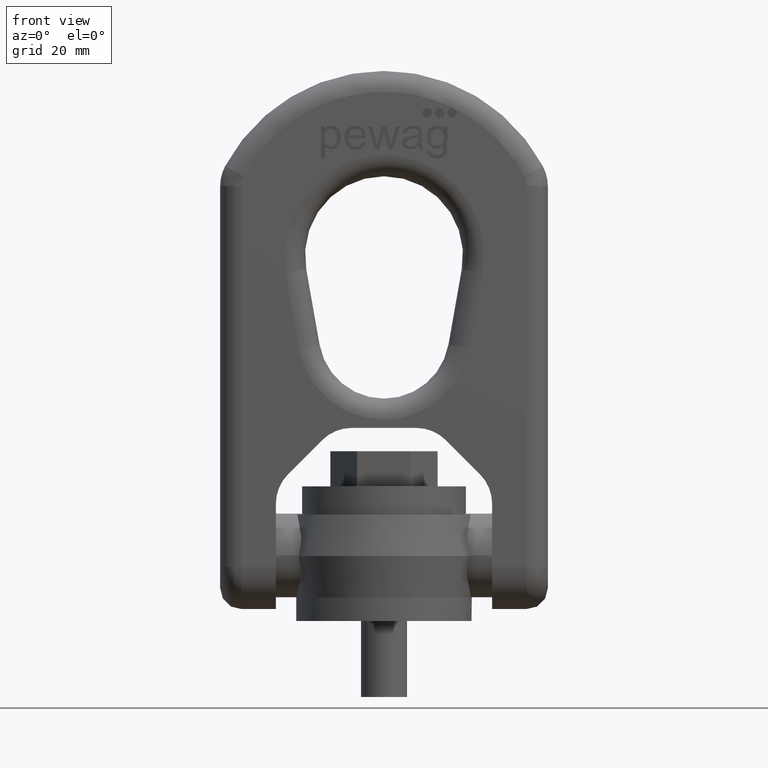
[diagram: clean part render]
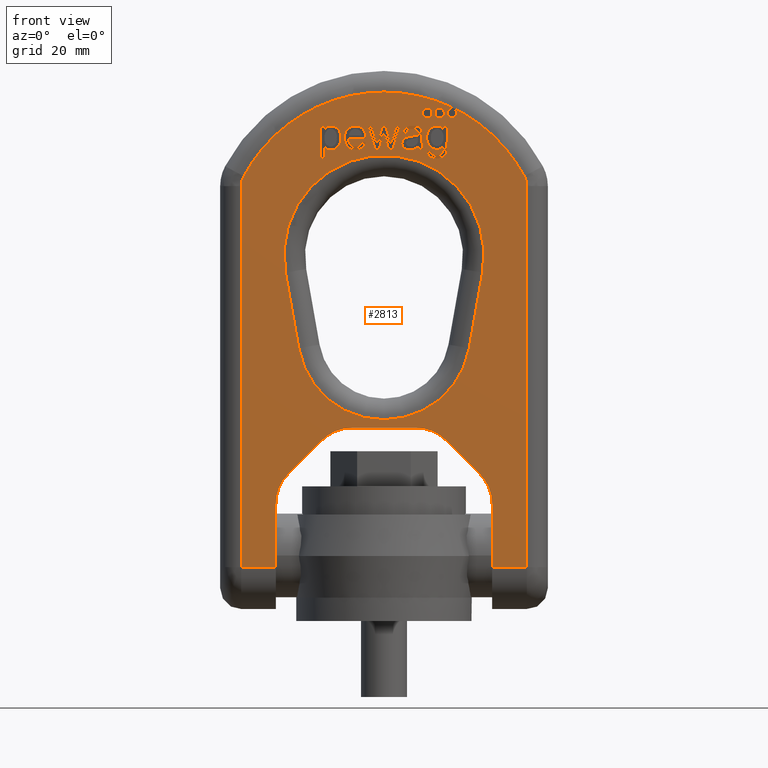
[diagram: same view with one face highlighted and labeled with its STEP entity id]
A machine part, front view. The second image highlights one B-rep face of the part: STEP entity #2813.
In plain terms, the highlighted planar face has unit normal (0, -1, 0).
Its self-contained STEP definition (entity closure, byte-faithful):
#303=B_SPLINE_CURVE_WITH_KNOTS('',3,(#7105,#7106,#7107,#7108),
 .UNSPECIFIED.,.F.,.F.,(4,4),(0.,1.),.UNSPECIFIED.);
#304=B_SPLINE_CURVE_WITH_KNOTS('',3,(#7110,#7111,#7112,#7113,#7114,#7115,
#7116,#7117,#7118,#7119),.UNSPECIFIED.,.F.,.F.,(4,2,2,2,4),(0.,0.228358481914091,
0.466434346037291,0.703045305681468,1.),.UNSPECIFIED.);
#305=B_SPLINE_CURVE_WITH_KNOTS('',3,(#7121,#7122,#7123,#7124),
 .UNSPECIFIED.,.F.,.F.,(4,4),(0.,1.),.UNSPECIFIED.);
#306=B_SPLINE_CURVE_WITH_KNOTS('',3,(#7128,#7129,#7130,#7131),
 .UNSPECIFIED.,.F.,.F.,(4,4),(0.,1.),.UNSPECIFIED.);
#307=B_SPLINE_CURVE_WITH_KNOTS('',3,(#7133,#7134,#7135,#7136),
 .UNSPECIFIED.,.F.,.F.,(4,4),(0.,1.),.UNSPECIFIED.);
#308=B_SPLINE_CURVE_WITH_KNOTS('',3,(#7138,#7139,#7140,#7141),
 .UNSPECIFIED.,.F.,.F.,(4,4),(0.,1.),.UNSPECIFIED.);
#309=B_SPLINE_CURVE_WITH_KNOTS('',3,(#7143,#7144,#7145,#7146),
 .UNSPECIFIED.,.F.,.F.,(4,4),(0.,1.),.UNSPECIFIED.);
#310=B_SPLINE_CURVE_WITH_KNOTS('',3,(#7148,#7149,#7150,#7151,#7152,#7153),
 .UNSPECIFIED.,.F.,.F.,(4,2,4),(0.,0.55978260869565,1.),.UNSPECIFIED.);
#311=B_SPLINE_CURVE_WITH_KNOTS('',3,(#7155,#7156,#7157,#7158),
 .UNSPECIFIED.,.F.,.F.,(4,4),(0.,1.),.UNSPECIFIED.);
#312=B_SPLINE_CURVE_WITH_KNOTS('',3,(#7162,#7163,#7164,#7165),
 .UNSPECIFIED.,.F.,.F.,(4,4),(0.,1.),.UNSPECIFIED.);
#313=B_SPLINE_CURVE_WITH_KNOTS('',3,(#7167,#7168,#7169,#7170,#7171,#7172),
 .UNSPECIFIED.,.F.,.F.,(4,2,4),(0.,0.476123595505615,1.),.UNSPECIFIED.);
#314=B_SPLINE_CURVE_WITH_KNOTS('',3,(#7174,#7175,#7176,#7177),
 .UNSPECIFIED.,.F.,.F.,(4,4),(0.,1.),.UNSPECIFIED.);
#315=B_SPLINE_CURVE_WITH_KNOTS('',3,(#7179,#7180,#7181,#7182,#7183,#7184,
#7185,#7186),.UNSPECIFIED.,.F.,.F.,(4,2,2,4),(0.,0.472355769230762,0.730769230769214,
1.),.UNSPECIFIED.);
#316=B_SPLINE_CURVE_WITH_KNOTS('',3,(#7188,#7189,#7190,#7191),
 .UNSPECIFIED.,.F.,.F.,(4,4),(0.,1.),.UNSPECIFIED.);
#317=B_SPLINE_CURVE_WITH_KNOTS('',3,(#7199,#7200,#7201,#7202),
 .UNSPECIFIED.,.F.,.F.,(4,4),(0.,1.),.UNSPECIFIED.);
#318=B_SPLINE_CURVE_WITH_KNOTS('',3,(#7204,#7205,#7206,#7207),
 .UNSPECIFIED.,.F.,.F.,(4,4),(0.,1.),.UNSPECIFIED.);
#319=B_SPLINE_CURVE_WITH_KNOTS('',3,(#7229,#7230,#7231,#7232),
 .UNSPECIFIED.,.F.,.F.,(4,4),(0.,1.),.UNSPECIFIED.);
#320=B_SPLINE_CURVE_WITH_KNOTS('',3,(#7242,#7243,#7244,#7245),
 .UNSPECIFIED.,.F.,.F.,(4,4),(0.,1.),.UNSPECIFIED.);
#321=B_SPLINE_CURVE_WITH_KNOTS('',3,(#7247,#7248,#7249,#7250,#7251,#7252),
 .UNSPECIFIED.,.F.,.F.,(4,2,4),(0.,0.434679334916866,1.),.UNSPECIFIED.);
#322=B_SPLINE_CURVE_WITH_KNOTS('',3,(#7254,#7255,#7256,#7257),
 .UNSPECIFIED.,.F.,.F.,(4,4),(0.,1.),.UNSPECIFIED.);
#323=B_SPLINE_CURVE_WITH_KNOTS('',3,(#7261,#7262,#7263,#7264),
 .UNSPECIFIED.,.F.,.F.,(4,4),(0.,1.),.UNSPECIFIED.);
#324=B_SPLINE_CURVE_WITH_KNOTS('',3,(#7266,#7267,#7268,#7269,#7270,#7271),
 .UNSPECIFIED.,.F.,.F.,(4,2,4),(0.,0.570469798657718,1.),.UNSPECIFIED.);
#325=B_SPLINE_CURVE_WITH_KNOTS('',3,(#7273,#7274,#7275,#7276,#7277,#7278,
#7279,#7280,#7281,#7282,#7283,#7284),.UNSPECIFIED.,.F.,.F.,(4,2,2,2,2,4),
(0.,0.122570626594234,0.245141253188468,0.495637533752412,0.746133814316355,
1.),.UNSPECIFIED.);
#326=B_SPLINE_CURVE_WITH_KNOTS('',3,(#7286,#7287,#7288,#7289),
 .UNSPECIFIED.,.F.,.F.,(4,4),(0.,1.),.UNSPECIFIED.);
#327=B_SPLINE_CURVE_WITH_KNOTS('',3,(#7290,#7291,#7292,#7293),
 .UNSPECIFIED.,.F.,.F.,(4,4),(0.,1.),.UNSPECIFIED.);
#328=B_SPLINE_CURVE_WITH_KNOTS('',3,(#7296,#7297,#7298,#7299),
 .UNSPECIFIED.,.F.,.F.,(4,4),(0.,1.),.UNSPECIFIED.);
#329=B_SPLINE_CURVE_WITH_KNOTS('',3,(#7301,#7302,#7303,#7304,#7305,#7306,
#7307,#7308,#7309,#7310),.UNSPECIFIED.,.F.,.F.,(4,2,2,2,4),(0.,0.230139294836345,
0.492074150143503,0.754009005450665,1.),.UNSPECIFIED.);
#330=B_SPLINE_CURVE_WITH_KNOTS('',3,(#7327,#7328,#7329,#7330,#7331,#7332),
 .UNSPECIFIED.,.F.,.F.,(4,2,4),(0.,0.329498767460968,1.),.UNSPECIFIED.);
#331=B_SPLINE_CURVE_WITH_KNOTS('',3,(#7335,#7336,#7337,#7338,#7339,#7340,
#7341,#7342),.UNSPECIFIED.,.F.,.F.,(4,2,2,4),(0.,0.361028692437342,0.681441656975486,
1.),.UNSPECIFIED.);
#332=B_SPLINE_CURVE_WITH_KNOTS('',3,(#7344,#7345,#7346,#7347),
 .UNSPECIFIED.,.F.,.F.,(4,4),(0.,1.),.UNSPECIFIED.);
#333=B_SPLINE_CURVE_WITH_KNOTS('',3,(#7351,#7352,#7353,#7354),
 .UNSPECIFIED.,.F.,.F.,(4,4),(0.,1.),.UNSPECIFIED.);
#334=B_SPLINE_CURVE_WITH_KNOTS('',3,(#7356,#7357,#7358,#7359,#7360,#7361),
 .UNSPECIFIED.,.F.,.F.,(4,2,4),(0.,0.555803571428574,1.),.UNSPECIFIED.);
#335=B_SPLINE_CURVE_WITH_KNOTS('',3,(#7363,#7364,#7365,#7366,#7367,#7368),
 .UNSPECIFIED.,.F.,.F.,(4,2,4),(0.,0.500000000000002,1.),.UNSPECIFIED.);
#336=B_SPLINE_CURVE_WITH_KNOTS('',3,(#7370,#7371,#7372,#7373,#7374,#7375,
#7376,#7377,#7378,#7379,#7380,#7381,#7382,#7383),.UNSPECIFIED.,.F.,.F.,
(4,2,2,2,2,2,4),(0.,0.152201346045992,0.327187324733599,0.502173303421206,
0.676318003365121,0.850462703309033,1.),.UNSPECIFIED.);
#1765=LINE('',#7036,#2073);
#1768=LINE('',#7045,#2076);
#1770=LINE('',#7054,#2078);
#1773=LINE('',#7067,#2081);
#1774=LINE('',#7069,#2082);
#1775=LINE('',#7074,#2083);
#1776=LINE('',#7077,#2084);
#1777=LINE('',#7085,#2085);
#1778=LINE('',#7086,#2086);
#1779=LINE('',#7089,#2087);
#1780=LINE('',#7093,#2088);
#1781=LINE('',#7097,#2089);
#1782=LINE('',#7101,#2090);
#1783=LINE('',#7102,#2091);
#1784=LINE('',#7126,#2092);
#1785=LINE('',#7160,#2093);
#1786=LINE('',#7192,#2094);
#1787=LINE('',#7195,#2095);
#1788=LINE('',#7197,#2096);
#1789=LINE('',#7209,#2097);
#1790=LINE('',#7211,#2098);
#1791=LINE('',#7213,#2099);
#1792=LINE('',#7215,#2100);
#1793=LINE('',#7217,#2101);
#1794=LINE('',#7219,#2102);
#1795=LINE('',#7221,#2103);
#1796=LINE('',#7223,#2104);
#1797=LINE('',#7225,#2105);
#1798=LINE('',#7227,#2106);
#1799=LINE('',#7234,#2107);
#1800=LINE('',#7236,#2108);
#1801=LINE('',#7238,#2109);
#1802=LINE('',#7239,#2110);
#1803=LINE('',#7259,#2111);
#1804=LINE('',#7312,#2112);
#1805=LINE('',#7314,#2113);
#1806=LINE('',#7316,#2114);
#1807=LINE('',#7318,#2115);
#1808=LINE('',#7320,#2116);
#1809=LINE('',#7322,#2117);
#1810=LINE('',#7324,#2118);
#1811=LINE('',#7349,#2119);
#1812=LINE('',#7385,#2120);
#1813=LINE('',#7387,#2121);
#1814=LINE('',#7389,#2122);
#2073=VECTOR('',#6164,1.);
#2076=VECTOR('',#6171,1.);
#2078=VECTOR('',#6179,1.);
#2081=VECTOR('',#6190,1.);
#2082=VECTOR('',#6193,1.);
#2083=VECTOR('',#6196,1.);
#2084=VECTOR('',#6199,1.);
#2085=VECTOR('',#6206,1.);
#2086=VECTOR('',#6207,1.);
#2087=VECTOR('',#6210,1.);
#2088=VECTOR('',#6213,1.);
#2089=VECTOR('',#6216,1.);
#2090=VECTOR('',#6219,1.);
#2091=VECTOR('',#6220,1.);
#2092=VECTOR('',#6221,1.);
#2093=VECTOR('',#6222,1.);
#2094=VECTOR('',#6223,1.);
#2095=VECTOR('',#6224,1.);
#2096=VECTOR('',#6225,1.);
#2097=VECTOR('',#6226,1.);
#2098=VECTOR('',#6227,1.);
#2099=VECTOR('',#6228,1.);
#2100=VECTOR('',#6229,1.);
#2101=VECTOR('',#6230,1.);
#2102=VECTOR('',#6231,1.);
#2103=VECTOR('',#6232,1.);
#2104=VECTOR('',#6233,1.);
#2105=VECTOR('',#6234,1.);
#2106=VECTOR('',#6235,1.);
#2107=VECTOR('',#6236,1.);
#2108=VECTOR('',#6237,1.);
#2109=VECTOR('',#6238,1.);
#2110=VECTOR('',#6239,1.);
#2111=VECTOR('',#6240,1.);
#2112=VECTOR('',#6241,1.);
#2113=VECTOR('',#6242,1.);
#2114=VECTOR('',#6243,1.);
#2115=VECTOR('',#6244,1.);
#2116=VECTOR('',#6245,1.);
#2117=VECTOR('',#6246,1.);
#2118=VECTOR('',#6247,1.);
#2119=VECTOR('',#6250,1.);
#2120=VECTOR('',#6251,1.);
#2121=VECTOR('',#6252,1.);
#2122=VECTOR('',#6253,1.);
#2685=PLANE('',#5881);
#2813=ADVANCED_FACE('',(#3087,#3088,#3089,#3090,#3091,#3092,#3093,#3094,
#3095,#3096),#2685,.T.);
#3087=FACE_BOUND('',#3173,.T.);
#3088=FACE_BOUND('',#3174,.T.);
#3089=FACE_BOUND('',#3175,.T.);
#3090=FACE_BOUND('',#3176,.T.);
#3091=FACE_BOUND('',#3177,.T.);
#3092=FACE_BOUND('',#3178,.T.);
#3093=FACE_BOUND('',#3179,.T.);
#3094=FACE_BOUND('',#3180,.T.);
#3095=FACE_BOUND('',#3181,.T.);
#3096=FACE_BOUND('',#3182,.T.);
#3173=EDGE_LOOP('',(#3537,#3538,#3539,#3540));
#3174=EDGE_LOOP('',(#3541,#3542,#3543,#3544,#3545,#3546,#3547,#3548,#3549,
#3550,#3551,#3552,#3553,#3554,#3555,#3556,#3557,#3558));
#3175=EDGE_LOOP('',(#3559,#3560,#3561,#3562,#3563,#3564,#3565,#3566,#3567,
#3568,#3569,#3570,#3571,#3572,#3573,#3574,#3575));
#3176=EDGE_LOOP('',(#3576,#3577,#3578,#3579,#3580,#3581,#3582,#3583,#3584,
#3585,#3586,#3587,#3588,#3589,#3590,#3591,#3592,#3593,#3594));
#3177=EDGE_LOOP('',(#3595,#3596,#3597,#3598,#3599,#3600,#3601,#3602,#3603));
#3178=EDGE_LOOP('',(#3604,#3605,#3606,#3607,#3608,#3609,#3610,#3611,#3612,
#3613));
#3179=EDGE_LOOP('',(#3614));
#3180=EDGE_LOOP('',(#3615,#3616,#3617,#3618,#3619,#3620,#3621,#3622,#3623,
#3624,#3625));
#3181=EDGE_LOOP('',(#3626));
#3182=EDGE_LOOP('',(#3627));
#3537=ORIENTED_EDGE('',*,*,#5176,.T.);
#3538=ORIENTED_EDGE('',*,*,#5177,.T.);
#3539=ORIENTED_EDGE('',*,*,#5178,.T.);
#3540=ORIENTED_EDGE('',*,*,#5179,.T.);
#3541=ORIENTED_EDGE('',*,*,#5175,.T.);
#3542=ORIENTED_EDGE('',*,*,#5180,.T.);
#3543=ORIENTED_EDGE('',*,*,#5181,.T.);
#3544=ORIENTED_EDGE('',*,*,#5182,.T.);
#3545=ORIENTED_EDGE('',*,*,#5183,.T.);
#3546=ORIENTED_EDGE('',*,*,#5184,.T.);
#3547=ORIENTED_EDGE('',*,*,#5169,.T.);
#3548=ORIENTED_EDGE('',*,*,#5185,.T.);
#3549=ORIENTED_EDGE('',*,*,#5161,.T.);
#3550=ORIENTED_EDGE('',*,*,#5186,.T.);
#3551=ORIENTED_EDGE('',*,*,#5187,.T.);
#3552=ORIENTED_EDGE('',*,*,#5188,.T.);
#3553=ORIENTED_EDGE('',*,*,#5189,.T.);
#3554=ORIENTED_EDGE('',*,*,#5190,.T.);
#3555=ORIENTED_EDGE('',*,*,#5191,.T.);
#3556=ORIENTED_EDGE('',*,*,#5192,.T.);
#3557=ORIENTED_EDGE('',*,*,#5193,.T.);
#3558=ORIENTED_EDGE('',*,*,#5165,.T.);
#3559=ORIENTED_EDGE('',*,*,#5194,.F.);
#3560=ORIENTED_EDGE('',*,*,#5195,.F.);
#3561=ORIENTED_EDGE('',*,*,#5196,.F.);
#3562=ORIENTED_EDGE('',*,*,#5197,.F.);
#3563=ORIENTED_EDGE('',*,*,#5198,.F.);
#3564=ORIENTED_EDGE('',*,*,#5199,.F.);
#3565=ORIENTED_EDGE('',*,*,#5200,.F.);
#3566=ORIENTED_EDGE('',*,*,#5201,.F.);
#3567=ORIENTED_EDGE('',*,*,#5202,.F.);
#3568=ORIENTED_EDGE('',*,*,#5203,.F.);
#3569=ORIENTED_EDGE('',*,*,#5204,.F.);
#3570=ORIENTED_EDGE('',*,*,#5205,.F.);
#3571=ORIENTED_EDGE('',*,*,#5206,.F.);
#3572=ORIENTED_EDGE('',*,*,#5207,.F.);
#3573=ORIENTED_EDGE('',*,*,#5208,.F.);
#3574=ORIENTED_EDGE('',*,*,#5209,.F.);
#3575=ORIENTED_EDGE('',*,*,#5210,.F.);
#3576=ORIENTED_EDGE('',*,*,#5211,.F.);
#3577=ORIENTED_EDGE('',*,*,#5212,.F.);
#3578=ORIENTED_EDGE('',*,*,#5213,.F.);
#3579=ORIENTED_EDGE('',*,*,#5214,.F.);
#3580=ORIENTED_EDGE('',*,*,#5215,.F.);
#3581=ORIENTED_EDGE('',*,*,#5216,.F.);
#3582=ORIENTED_EDGE('',*,*,#5217,.F.);
#3583=ORIENTED_EDGE('',*,*,#5218,.F.);
#3584=ORIENTED_EDGE('',*,*,#5219,.F.);
#3585=ORIENTED_EDGE('',*,*,#5220,.F.);
#3586=ORIENTED_EDGE('',*,*,#5221,.F.);
#3587=ORIENTED_EDGE('',*,*,#5222,.F.);
#3588=ORIENTED_EDGE('',*,*,#5223,.F.);
#3589=ORIENTED_EDGE('',*,*,#5224,.F.);
#3590=ORIENTED_EDGE('',*,*,#5225,.F.);
#3591=ORIENTED_EDGE('',*,*,#5226,.F.);
#3592=ORIENTED_EDGE('',*,*,#5227,.F.);
#3593=ORIENTED_EDGE('',*,*,#5228,.F.);
#3594=ORIENTED_EDGE('',*,*,#5229,.F.);
#3595=ORIENTED_EDGE('',*,*,#5230,.F.);
#3596=ORIENTED_EDGE('',*,*,#5231,.F.);
#3597=ORIENTED_EDGE('',*,*,#5232,.F.);
#3598=ORIENTED_EDGE('',*,*,#5233,.F.);
#3599=ORIENTED_EDGE('',*,*,#5234,.F.);
#3600=ORIENTED_EDGE('',*,*,#5235,.F.);
#3601=ORIENTED_EDGE('',*,*,#5236,.F.);
#3602=ORIENTED_EDGE('',*,*,#5237,.F.);
#3603=ORIENTED_EDGE('',*,*,#5238,.F.);
#3604=ORIENTED_EDGE('',*,*,#5239,.F.);
#3605=ORIENTED_EDGE('',*,*,#5240,.F.);
#3606=ORIENTED_EDGE('',*,*,#5241,.F.);
#3607=ORIENTED_EDGE('',*,*,#5242,.F.);
#3608=ORIENTED_EDGE('',*,*,#5243,.F.);
#3609=ORIENTED_EDGE('',*,*,#5244,.F.);
#3610=ORIENTED_EDGE('',*,*,#5245,.F.);
#3611=ORIENTED_EDGE('',*,*,#5246,.F.);
#3612=ORIENTED_EDGE('',*,*,#5247,.F.);
#3613=ORIENTED_EDGE('',*,*,#5248,.F.);
#3614=ORIENTED_EDGE('',*,*,#5249,.F.);
#3615=ORIENTED_EDGE('',*,*,#5250,.F.);
#3616=ORIENTED_EDGE('',*,*,#5251,.F.);
#3617=ORIENTED_EDGE('',*,*,#5252,.F.);
#3618=ORIENTED_EDGE('',*,*,#5253,.F.);
#3619=ORIENTED_EDGE('',*,*,#5254,.F.);
#3620=ORIENTED_EDGE('',*,*,#5255,.F.);
#3621=ORIENTED_EDGE('',*,*,#5256,.F.);
#3622=ORIENTED_EDGE('',*,*,#5257,.F.);
#3623=ORIENTED_EDGE('',*,*,#5258,.F.);
#3624=ORIENTED_EDGE('',*,*,#5259,.F.);
#3625=ORIENTED_EDGE('',*,*,#5260,.F.);
#3626=ORIENTED_EDGE('',*,*,#5261,.F.);
#3627=ORIENTED_EDGE('',*,*,#5262,.F.);
#4729=VERTEX_POINT('',#7037);
#4730=VERTEX_POINT('',#7038);
#4733=VERTEX_POINT('',#7046);
#4734=VERTEX_POINT('',#7047);
#4737=VERTEX_POINT('',#7055);
#4738=VERTEX_POINT('',#7056);
#4742=VERTEX_POINT('',#7066);
#4743=VERTEX_POINT('',#7070);
#4744=VERTEX_POINT('',#7071);
#4745=VERTEX_POINT('',#7073);
#4746=VERTEX_POINT('',#7075);
#4747=VERTEX_POINT('',#7078);
#4748=VERTEX_POINT('',#7080);
#4749=VERTEX_POINT('',#7082);
#4750=VERTEX_POINT('',#7084);
#4751=VERTEX_POINT('',#7088);
#4752=VERTEX_POINT('',#7090);
#4753=VERTEX_POINT('',#7092);
#4754=VERTEX_POINT('',#7094);
#4755=VERTEX_POINT('',#7096);
#4756=VERTEX_POINT('',#7098);
#4757=VERTEX_POINT('',#7100);
#4758=VERTEX_POINT('',#7103);
#4759=VERTEX_POINT('',#7104);
#4760=VERTEX_POINT('',#7109);
#4761=VERTEX_POINT('',#7120);
#4762=VERTEX_POINT('',#7125);
#4763=VERTEX_POINT('',#7127);
#4764=VERTEX_POINT('',#7132);
#4765=VERTEX_POINT('',#7137);
#4766=VERTEX_POINT('',#7142);
#4767=VERTEX_POINT('',#7147);
#4768=VERTEX_POINT('',#7154);
#4769=VERTEX_POINT('',#7159);
#4770=VERTEX_POINT('',#7161);
#4771=VERTEX_POINT('',#7166);
#4772=VERTEX_POINT('',#7173);
#4773=VERTEX_POINT('',#7178);
#4774=VERTEX_POINT('',#7187);
#4775=VERTEX_POINT('',#7193);
#4776=VERTEX_POINT('',#7194);
#4777=VERTEX_POINT('',#7196);
#4778=VERTEX_POINT('',#7198);
#4779=VERTEX_POINT('',#7203);
#4780=VERTEX_POINT('',#7208);
#4781=VERTEX_POINT('',#7210);
#4782=VERTEX_POINT('',#7212);
#4783=VERTEX_POINT('',#7214);
#4784=VERTEX_POINT('',#7216);
#4785=VERTEX_POINT('',#7218);
#4786=VERTEX_POINT('',#7220);
#4787=VERTEX_POINT('',#7222);
#4788=VERTEX_POINT('',#7224);
#4789=VERTEX_POINT('',#7226);
#4790=VERTEX_POINT('',#7228);
#4791=VERTEX_POINT('',#7233);
#4792=VERTEX_POINT('',#7235);
#4793=VERTEX_POINT('',#7237);
#4794=VERTEX_POINT('',#7240);
#4795=VERTEX_POINT('',#7241);
#4796=VERTEX_POINT('',#7246);
#4797=VERTEX_POINT('',#7253);
#4798=VERTEX_POINT('',#7258);
#4799=VERTEX_POINT('',#7260);
#4800=VERTEX_POINT('',#7265);
#4801=VERTEX_POINT('',#7272);
#4802=VERTEX_POINT('',#7285);
#4803=VERTEX_POINT('',#7294);
#4804=VERTEX_POINT('',#7295);
#4805=VERTEX_POINT('',#7300);
#4806=VERTEX_POINT('',#7311);
#4807=VERTEX_POINT('',#7313);
#4808=VERTEX_POINT('',#7315);
#4809=VERTEX_POINT('',#7317);
#4810=VERTEX_POINT('',#7319);
#4811=VERTEX_POINT('',#7321);
#4812=VERTEX_POINT('',#7323);
#4813=VERTEX_POINT('',#7326);
#4814=VERTEX_POINT('',#7333);
#4815=VERTEX_POINT('',#7334);
#4816=VERTEX_POINT('',#7343);
#4817=VERTEX_POINT('',#7348);
#4818=VERTEX_POINT('',#7350);
#4819=VERTEX_POINT('',#7355);
#4820=VERTEX_POINT('',#7362);
#4821=VERTEX_POINT('',#7369);
#4822=VERTEX_POINT('',#7384);
#4823=VERTEX_POINT('',#7386);
#4824=VERTEX_POINT('',#7388);
#4825=VERTEX_POINT('',#7391);
#4826=VERTEX_POINT('',#7393);
#5161=EDGE_CURVE('',#4729,#4730,#1765,.T.);
#5165=EDGE_CURVE('',#4733,#4734,#1768,.T.);
#5169=EDGE_CURVE('',#4737,#4738,#1770,.T.);
#5175=EDGE_CURVE('',#4734,#4742,#1773,.T.);
#5176=EDGE_CURVE('',#4743,#4744,#1774,.T.);
#5177=EDGE_CURVE('',#4744,#4745,#5763,.T.);
#5178=EDGE_CURVE('',#4745,#4746,#1775,.T.);
#5179=EDGE_CURVE('',#4746,#4743,#5764,.T.);
#5180=EDGE_CURVE('',#4742,#4747,#1776,.T.);
#5181=EDGE_CURVE('',#4747,#4748,#5765,.T.);
#5182=EDGE_CURVE('',#4748,#4749,#5766,.T.);
#5183=EDGE_CURVE('',#4749,#4750,#5767,.T.);
#5184=EDGE_CURVE('',#4750,#4737,#1777,.T.);
#5185=EDGE_CURVE('',#4738,#4729,#1778,.T.);
#5186=EDGE_CURVE('',#4730,#4751,#5768,.T.);
#5187=EDGE_CURVE('',#4751,#4752,#1779,.T.);
#5188=EDGE_CURVE('',#4752,#4753,#5769,.T.);
#5189=EDGE_CURVE('',#4753,#4754,#1780,.T.);
#5190=EDGE_CURVE('',#4754,#4755,#5770,.T.);
#5191=EDGE_CURVE('',#4755,#4756,#1781,.T.);
#5192=EDGE_CURVE('',#4756,#4757,#5771,.T.);
#5193=EDGE_CURVE('',#4757,#4733,#1782,.T.);
#5194=EDGE_CURVE('',#4758,#4759,#1783,.T.);
#5195=EDGE_CURVE('',#4760,#4758,#303,.T.);
#5196=EDGE_CURVE('',#4761,#4760,#304,.T.);
#5197=EDGE_CURVE('',#4762,#4761,#305,.T.);
#5198=EDGE_CURVE('',#4763,#4762,#1784,.T.);
#5199=EDGE_CURVE('',#4764,#4763,#306,.T.);
#5200=EDGE_CURVE('',#4765,#4764,#307,.T.);
#5201=EDGE_CURVE('',#4766,#4765,#308,.T.);
#5202=EDGE_CURVE('',#4767,#4766,#309,.T.);
#5203=EDGE_CURVE('',#4768,#4767,#310,.T.);
#5204=EDGE_CURVE('',#4769,#4768,#311,.T.);
#5205=EDGE_CURVE('',#4770,#4769,#1785,.T.);
#5206=EDGE_CURVE('',#4771,#4770,#312,.T.);
#5207=EDGE_CURVE('',#4772,#4771,#313,.T.);
#5208=EDGE_CURVE('',#4773,#4772,#314,.T.);
#5209=EDGE_CURVE('',#4774,#4773,#315,.T.);
#5210=EDGE_CURVE('',#4759,#4774,#316,.T.);
#5211=EDGE_CURVE('',#4775,#4776,#1786,.T.);
#5212=EDGE_CURVE('',#4777,#4775,#1787,.T.);
#5213=EDGE_CURVE('',#4778,#4777,#1788,.T.);
#5214=EDGE_CURVE('',#4779,#4778,#317,.T.);
#5215=EDGE_CURVE('',#4780,#4779,#318,.T.);
#5216=EDGE_CURVE('',#4781,#4780,#1789,.T.);
#5217=EDGE_CURVE('',#4782,#4781,#1790,.T.);
#5218=EDGE_CURVE('',#4783,#4782,#1791,.T.);
#5219=EDGE_CURVE('',#4784,#4783,#1792,.T.);
#5220=EDGE_CURVE('',#4785,#4784,#1793,.T.);
#5221=EDGE_CURVE('',#4786,#4785,#1794,.T.);
#5222=EDGE_CURVE('',#4787,#4786,#1795,.T.);
#5223=EDGE_CURVE('',#4788,#4787,#1796,.T.);
#5224=EDGE_CURVE('',#4789,#4788,#1797,.T.);
#5225=EDGE_CURVE('',#4790,#4789,#1798,.T.);
#5226=EDGE_CURVE('',#4791,#4790,#319,.T.);
#5227=EDGE_CURVE('',#4792,#4791,#1799,.T.);
#5228=EDGE_CURVE('',#4793,#4792,#1800,.T.);
#5229=EDGE_CURVE('',#4776,#4793,#1801,.T.);
#5230=EDGE_CURVE('',#4794,#4795,#1802,.T.);
#5231=EDGE_CURVE('',#4796,#4794,#320,.T.);
#5232=EDGE_CURVE('',#4797,#4796,#321,.T.);
#5233=EDGE_CURVE('',#4798,#4797,#322,.T.);
#5234=EDGE_CURVE('',#4799,#4798,#1803,.T.);
#5235=EDGE_CURVE('',#4800,#4799,#323,.T.);
#5236=EDGE_CURVE('',#4801,#4800,#324,.T.);
#5237=EDGE_CURVE('',#4802,#4801,#325,.T.);
#5238=EDGE_CURVE('',#4795,#4802,#326,.T.);
#5239=EDGE_CURVE('',#4803,#4804,#327,.T.);
#5240=EDGE_CURVE('',#4805,#4803,#328,.T.);
#5241=EDGE_CURVE('',#4806,#4805,#329,.T.);
#5242=EDGE_CURVE('',#4807,#4806,#1804,.T.);
#5243=EDGE_CURVE('',#4808,#4807,#1805,.T.);
#5244=EDGE_CURVE('',#4809,#4808,#1806,.T.);
#5245=EDGE_CURVE('',#4810,#4809,#1807,.T.);
#5246=EDGE_CURVE('',#4811,#4810,#1808,.T.);
#5247=EDGE_CURVE('',#4812,#4811,#1809,.T.);
#5248=EDGE_CURVE('',#4804,#4812,#1810,.T.);
#5249=EDGE_CURVE('',#4813,#4813,#5772,.T.);
#5250=EDGE_CURVE('',#4814,#4815,#330,.T.);
#5251=EDGE_CURVE('',#4816,#4814,#331,.T.);
#5252=EDGE_CURVE('',#4817,#4816,#332,.T.);
#5253=EDGE_CURVE('',#4818,#4817,#1811,.T.);
#5254=EDGE_CURVE('',#4819,#4818,#333,.T.);
#5255=EDGE_CURVE('',#4820,#4819,#334,.T.);
#5256=EDGE_CURVE('',#4821,#4820,#335,.T.);
#5257=EDGE_CURVE('',#4822,#4821,#336,.T.);
#5258=EDGE_CURVE('',#4823,#4822,#1812,.T.);
#5259=EDGE_CURVE('',#4824,#4823,#1813,.T.);
#5260=EDGE_CURVE('',#4815,#4824,#1814,.T.);
#5261=EDGE_CURVE('',#4825,#4825,#5773,.T.);
#5262=EDGE_CURVE('',#4826,#4826,#5774,.T.);
#5763=CIRCLE('',#5869,17.1);
#5764=CIRCLE('',#5870,14.7884785599634);
#5765=CIRCLE('',#5871,3.6);
#5766=CIRCLE('',#5872,27.1777777777778);
#5767=CIRCLE('',#5873,3.6);
#5768=CIRCLE('',#5874,7.2);
#5769=CIRCLE('',#5875,7.2);
#5770=CIRCLE('',#5876,7.2);
#5771=CIRCLE('',#5877,7.2);
#5772=CIRCLE('',#5878,0.810000000000001);
#5773=CIRCLE('',#5879,0.810000000000001);
#5774=CIRCLE('',#5880,0.810000000000001);
#5869=AXIS2_PLACEMENT_3D('',#7072,#6194,#6195);
#5870=AXIS2_PLACEMENT_3D('',#7076,#6197,#6198);
#5871=AXIS2_PLACEMENT_3D('',#7079,#6200,#6201);
#5872=AXIS2_PLACEMENT_3D('',#7081,#6202,#6203);
#5873=AXIS2_PLACEMENT_3D('',#7083,#6204,#6205);
#5874=AXIS2_PLACEMENT_3D('',#7087,#6208,#6209);
#5875=AXIS2_PLACEMENT_3D('',#7091,#6211,#6212);
#5876=AXIS2_PLACEMENT_3D('',#7095,#6214,#6215);
#5877=AXIS2_PLACEMENT_3D('',#7099,#6217,#6218);
#5878=AXIS2_PLACEMENT_3D('',#7325,#6248,#6249);
#5879=AXIS2_PLACEMENT_3D('',#7390,#6254,#6255);
#5880=AXIS2_PLACEMENT_3D('',#7392,#6256,#6257);
#5881=AXIS2_PLACEMENT_3D('',#7394,#6258,#6259);
#6164=DIRECTION('',(1.50845519650157E-16,0.,1.));
#6171=DIRECTION('',(1.50845519650157E-16,0.,-1.));
#6179=DIRECTION('',(1.,0.,-1.17713378726998E-15));
#6190=DIRECTION('',(1.,0.,-1.17713378726998E-15));
#6193=DIRECTION('',(-0.173648177666931,0.,0.984807753012208));
#6194=DIRECTION('',(0.,1.,0.));
#6195=DIRECTION('',(0.,0.,-1.));
#6196=DIRECTION('',(-0.173648177666931,0.,-0.984807753012208));
#6197=DIRECTION('',(0.,1.,0.));
#6198=DIRECTION('',(0.,0.,-1.));
#6199=DIRECTION('',(-1.4065325480893E-16,0.,1.));
#6200=DIRECTION('',(0.,-1.,0.));
#6201=DIRECTION('',(0.,0.,-1.));
#6202=DIRECTION('',(0.,-1.,0.));
#6203=DIRECTION('',(0.,0.,-1.));
#6204=DIRECTION('',(0.,-1.,0.));
#6205=DIRECTION('',(0.,0.,-1.));
#6206=DIRECTION('',(-1.4065325480893E-16,0.,-1.));
#6207=DIRECTION('',(1.50845519650157E-16,0.,1.));
#6208=DIRECTION('',(0.,1.,0.));
#6209=DIRECTION('',(0.,0.,-1.));
#6210=DIRECTION('',(0.707106781186548,0.,0.707106781186547));
#6211=DIRECTION('',(0.,1.,0.));
#6212=DIRECTION('',(0.,0.,-1.));
#6213=DIRECTION('',(1.,0.,0.));
#6214=DIRECTION('',(0.,1.,0.));
#6215=DIRECTION('',(0.,0.,-1.));
#6216=DIRECTION('',(0.707106781186548,0.,-0.707106781186547));
#6217=DIRECTION('',(0.,1.,0.));
#6218=DIRECTION('',(0.,0.,-1.));
#6219=DIRECTION('',(1.50845519650157E-16,0.,-1.));
#6220=DIRECTION('',(1.,0.,0.));
#6221=DIRECTION('',(-0.989370262977934,0.,-0.145418302613437));
#6222=DIRECTION('',(0.991928985003785,0.,-0.12679467145492));
#6223=DIRECTION('',(0.304245570453574,0.,0.952593634693923));
#6224=DIRECTION('',(1.,0.,0.));
#6225=DIRECTION('',(0.259135455314435,0.,-0.965840988879112));
#6226=DIRECTION('',(1.,0.,0.));
#6227=DIRECTION('',(0.254367653151693,0.,0.967107593305988));
#6228=DIRECTION('',(1.,0.,0.));
#6229=DIRECTION('',(0.298320908470945,0.,-0.954465628280595));
#6230=DIRECTION('',(-1.,0.,0.));
#6231=DIRECTION('',(-0.269463722620019,0.,0.963010541059526));
#6232=DIRECTION('',(-0.247736970080353,0.,-0.968827329122897));
#6233=DIRECTION('',(-0.266059563516179,0.,-0.963956590652079));
#6234=DIRECTION('',(-1.,0.,0.));
#6235=DIRECTION('',(-0.253070161005814,0.,0.96744792811215));
#6236=DIRECTION('',(-1.,0.,0.));
#6237=DIRECTION('',(-0.287282618696351,0.,-0.957845862858407));
#6238=DIRECTION('',(-1.,0.,0.));
#6239=DIRECTION('',(1.,0.,0.));
#6240=DIRECTION('',(-0.992687288142565,0.,0.120714323757208));
#6241=DIRECTION('',(1.,0.,0.));
#6242=DIRECTION('',(0.,0.,1.));
#6243=DIRECTION('',(1.,0.,0.));
#6244=DIRECTION('',(0.,0.,-1.));
#6245=DIRECTION('',(-1.,0.,0.));
#6246=DIRECTION('',(0.,0.,1.));
#6247=DIRECTION('',(-1.,0.,0.));
#6248=DIRECTION('',(0.,-1.,0.));
#6249=DIRECTION('',(0.,0.,-1.00000000000001));
#6250=DIRECTION('',(-0.988666662925711,0.,0.150127377980627));
#6251=DIRECTION('',(-1.,0.,0.));
#6252=DIRECTION('',(0.,0.,-1.));
#6253=DIRECTION('',(-1.,0.,0.));
#6254=DIRECTION('',(0.,-1.,0.));
#6255=DIRECTION('',(0.,0.,-1.00000000000001));
#6256=DIRECTION('',(0.,-1.,0.));
#6257=DIRECTION('',(0.,0.,-1.00000000000001));
#6258=DIRECTION('',(0.,-1.,0.));
#6259=DIRECTION('',(0.,0.,-1.));
#7036=CARTESIAN_POINT('',(-18.48,-7.2,63.2222222222222));
#7037=CARTESIAN_POINT('',(-18.48,-7.2,11.2));
#7038=CARTESIAN_POINT('',(-18.48,-7.2,20.0176623509137));
#7045=CARTESIAN_POINT('',(18.48,-7.2,63.2222222222222));
#7046=CARTESIAN_POINT('',(18.48,-7.2,11.2));
#7047=CARTESIAN_POINT('',(18.48,-7.19999999999999,9.2));
#7054=CARTESIAN_POINT('',(28.,-7.2,9.19999999999997));
#7055=CARTESIAN_POINT('',(-24.4,-7.2,9.20000000000003));
#7056=CARTESIAN_POINT('',(-18.48,-7.19999999999995,9.2));
#7066=CARTESIAN_POINT('',(24.4,-7.2,9.19999999999997));
#7067=CARTESIAN_POINT('',(28.,-7.2,9.19999999999997));
#7069=CARTESIAN_POINT('',(-16.8402125765088,-7.2,59.5306161618955));
#7070=CARTESIAN_POINT('',(-14.5638083411067,-7.2,46.6204862075592));
#7071=CARTESIAN_POINT('',(-16.8402125765088,-7.2,59.5306161618955));
#7072=CARTESIAN_POINT('',(0.,-7.2,62.5));
#7073=CARTESIAN_POINT('',(16.8402125765088,-7.2,59.5306161618955));
#7074=CARTESIAN_POINT('',(14.5638083411067,-7.2,46.6204862075592));
#7075=CARTESIAN_POINT('',(14.5638083411067,-7.2,46.6204862075592));
#7076=CARTESIAN_POINT('',(0.,-7.2,49.1884785599633));
#7077=CARTESIAN_POINT('',(24.4,-7.2,74.324996872654));
#7078=CARTESIAN_POINT('',(24.4,-7.2,74.324996872654));
#7079=CARTESIAN_POINT('',(20.8,-7.2,74.324996872654));
#7080=CARTESIAN_POINT('',(23.9758718190387,-7.2,76.0202367344542));
#7081=CARTESIAN_POINT('',(0.,-7.2,63.2222222222222));
#7082=CARTESIAN_POINT('',(-23.9758718190386,-7.2,76.0202367344542));
#7083=CARTESIAN_POINT('',(-20.8,-7.2,74.324996872654));
#7084=CARTESIAN_POINT('',(-24.4,-7.2,74.324996872654));
#7085=CARTESIAN_POINT('',(-24.4,-7.2,9.20000000000004));
#7086=CARTESIAN_POINT('',(-18.48,-7.2,63.2222222222222));
#7087=CARTESIAN_POINT('',(-11.28,-7.2,20.0176623509137));
#7088=CARTESIAN_POINT('',(-16.3711688245431,-7.2,25.1088311754569));
#7089=CARTESIAN_POINT('',(10.8711111111111,-7.2,52.3511111111111));
#7090=CARTESIAN_POINT('',(-10.5888311754568,-7.2,30.8911688245431));
#7091=CARTESIAN_POINT('',(-5.4976623509137,-7.2,25.8));
#7092=CARTESIAN_POINT('',(-5.4976623509137,-7.2,33.));
#7093=CARTESIAN_POINT('',(0.,-7.2,33.));
#7094=CARTESIAN_POINT('',(5.4976623509137,-7.2,33.));
#7095=CARTESIAN_POINT('',(5.4976623509137,-7.2,25.8));
#7096=CARTESIAN_POINT('',(10.5888311754568,-7.2,30.8911688245431));
#7097=CARTESIAN_POINT('',(-10.8711111111111,-7.2,52.3511111111111));
#7098=CARTESIAN_POINT('',(16.3711688245431,-7.2,25.1088311754569));
#7099=CARTESIAN_POINT('',(11.28,-7.2,20.0176623509137));
#7100=CARTESIAN_POINT('',(18.48,-7.2,20.0176623509137));
#7101=CARTESIAN_POINT('',(18.48,-7.2,63.2222222222222));
#7102=CARTESIAN_POINT('',(0.,-7.2,80.6));
#7103=CARTESIAN_POINT('',(6.01389991540314,-7.2,80.6));
#7104=CARTESIAN_POINT('',(6.72232706448884,-7.2,80.6));
#7105=CARTESIAN_POINT('',(5.87474458254702,-7.2,81.0821181887951));
#7106=CARTESIAN_POINT('',(5.90145116158001,-7.2,80.8831926323868));
#7107=CARTESIAN_POINT('',(5.94783627253205,-7.2,80.7229470452802));
#7108=CARTESIAN_POINT('',(6.01389991540314,-7.2,80.6));
#7109=CARTESIAN_POINT('',(5.87474458254702,-7.2,81.0821181887951));
#7110=CARTESIAN_POINT('',(3.402277607861,-7.2,82.4359171143515));
#7111=CARTESIAN_POINT('',(3.16894644367801,-7.2,82.2259401381428));
#7112=CARTESIAN_POINT('',(3.05228086158652,-7.2,81.9593246354567));
#7113=CARTESIAN_POINT('',(3.05228086158652,-7.2,81.296239447429));
#7114=CARTESIAN_POINT('',(3.17316327194638,-7.2,81.0240982348427));
#7115=CARTESIAN_POINT('',(3.65800788038079,-7.2,80.6109450014301));
#7116=CARTESIAN_POINT('',(3.98982234658684,-7.2,80.5074443591711));
#7117=CARTESIAN_POINT('',(4.93439187870111,-7.2,80.5074443591711));
#7118=CARTESIAN_POINT('',(5.42213834840893,-7.2,80.6994627782042));
#7119=CARTESIAN_POINT('',(5.87474458254702,-7.2,81.0821181887951));
#7120=CARTESIAN_POINT('',(3.402277607861,-7.2,82.4359171143515));
#7121=CARTESIAN_POINT('',(4.61953536799636,-7.2,82.8544896392939));
#7122=CARTESIAN_POINT('',(4.04182989523004,-7.2,82.7854182655411));
#7123=CARTESIAN_POINT('',(3.63701438146678,-7.2,82.6458940905602));
#7124=CARTESIAN_POINT('',(3.402277607861,-7.2,82.4359171143515));
#7125=CARTESIAN_POINT('',(4.61953536799636,-7.2,82.8544896392939));
#7126=CARTESIAN_POINT('',(-2.72685733873896,-7.2,81.7747119284401));
#7127=CARTESIAN_POINT('',(5.24924838940587,-7.2,82.9470452801228));
#7128=CARTESIAN_POINT('',(5.82976508101776,-7.2,83.0824251726784));
#7129=CARTESIAN_POINT('',(5.67655365393376,-7.2,83.0285495011512));
#7130=CARTESIAN_POINT('',(5.48398516301165,-7.2,82.9829623944743));
#7131=CARTESIAN_POINT('',(5.24924838940587,-7.2,82.9470452801228));
#7132=CARTESIAN_POINT('',(5.82976508101776,-7.2,83.0824251726784));
#7133=CARTESIAN_POINT('',(5.81149215852151,-7.2,83.503760552571));
#7134=CARTESIAN_POINT('',(5.82273703390382,-7.2,83.4222563315426));
#7135=CARTESIAN_POINT('',(5.82976508101776,-7.2,83.2813507290867));
#7136=CARTESIAN_POINT('',(5.82976508101776,-7.2,83.0824251726784));
#7137=CARTESIAN_POINT('',(5.81149215852151,-7.2,83.503760552571));
#7138=CARTESIAN_POINT('',(5.70044901412117,-7.2,83.7607060629317));
#7139=CARTESIAN_POINT('',(5.7608902193011,-7.2,83.672294704528));
#7140=CARTESIAN_POINT('',(5.7988416737164,-7.2,83.5866462010745));
#7141=CARTESIAN_POINT('',(5.81149215852151,-7.2,83.503760552571));
#7142=CARTESIAN_POINT('',(5.70044901412117,-7.2,83.7607060629317));
#7143=CARTESIAN_POINT('',(5.40667664475825,-7.2,83.9734458940906));
#7144=CARTESIAN_POINT('',(5.541615149346,-7.2,83.9195702225633));
#7145=CARTESIAN_POINT('',(5.63860219951845,-7.2,83.8491174213354));
#7146=CARTESIAN_POINT('',(5.70044901412117,-7.2,83.7607060629317));
#7147=CARTESIAN_POINT('',(5.40667664475825,-7.2,83.9734458940906));
#7148=CARTESIAN_POINT('',(4.175362790395,-7.2,83.8960859554874));
#7149=CARTESIAN_POINT('',(4.34403592112969,-7.2,84.0024558710668));
#7150=CARTESIAN_POINT('',(4.57315025704431,-7.2,84.054950115119));
#7151=CARTESIAN_POINT('',(5.0904145246307,-7.2,84.054950115119));
#7152=CARTESIAN_POINT('',(5.2717381401705,-7.2,84.0287029930929));
#7153=CARTESIAN_POINT('',(5.40667664475825,-7.2,83.9734458940906));
#7154=CARTESIAN_POINT('',(4.175362790395,-7.2,83.8960859554874));
#7155=CARTESIAN_POINT('',(3.8281772629661,-7.2,83.3075978511128));
#7156=CARTESIAN_POINT('',(3.89002407756882,-7.2,83.5949347659248));
#7157=CARTESIAN_POINT('',(4.00668965966031,-7.2,83.791097467383));
#7158=CARTESIAN_POINT('',(4.175362790395,-7.2,83.8960859554874));
#7159=CARTESIAN_POINT('',(3.8281772629661,-7.2,83.3075978511128));
#7160=CARTESIAN_POINT('',(2.58770917968692,-7.2,83.4661623707988));
#7161=CARTESIAN_POINT('',(3.16894644367801,-7.2,83.3918649270913));
#7162=CARTESIAN_POINT('',(3.72697338452528,-7.2,84.2939370683039));
#7163=CARTESIAN_POINT('',(3.42757857747121,-7.2,84.0936300844206));
#7164=CARTESIAN_POINT('',(3.24063252424026,-7.2,83.792478894858));
#7165=CARTESIAN_POINT('',(3.16894644367801,-7.2,83.3918649270913));
#7166=CARTESIAN_POINT('',(3.72697338452528,-7.2,84.2939370683039));
#7167=CARTESIAN_POINT('',(6.01530552482593,-7.2,84.3878741366078));
#7168=CARTESIAN_POINT('',(5.79181362660246,-7.2,84.5273983115887));
#7169=CARTESIAN_POINT('',(5.44041127090519,-7.2,84.5964696853415));
#7170=CARTESIAN_POINT('',(4.43961736187935,-7.2,84.5964696853415));
#7171=CARTESIAN_POINT('',(4.02636819157936,-7.2,84.4956254796623));
#7172=CARTESIAN_POINT('',(3.72697338452528,-7.2,84.2939370683039));
#7173=CARTESIAN_POINT('',(6.01530552482593,-7.2,84.3878741366078));
#7174=CARTESIAN_POINT('',(6.42714908570313,-7.2,83.8850345356869));
#7175=CARTESIAN_POINT('',(6.37654714648272,-7.2,84.0825786646201));
#7176=CARTESIAN_POINT('',(6.23879742304939,-7.2,84.2497313891021));
#7177=CARTESIAN_POINT('',(6.01530552482593,-7.2,84.3878741366078));
#7178=CARTESIAN_POINT('',(6.42714908570313,-7.2,83.8850345356869));
#7179=CARTESIAN_POINT('',(6.53678662068068,-7.2,81.1429009976976));
#7180=CARTESIAN_POINT('',(6.51429686991606,-7.2,81.3280122793553));
#7181=CARTESIAN_POINT('',(6.50445760395653,-7.2,81.6927091327705));
#7182=CARTESIAN_POINT('',(6.50445760395653,-7.2,82.5326170376055));
#7183=CARTESIAN_POINT('',(6.50445760395653,-7.2,82.8296239447429));
#7184=CARTESIAN_POINT('',(6.50445760395653,-7.2,83.4360706062932));
#7185=CARTESIAN_POINT('',(6.47915663434633,-7.2,83.6888718342287));
#7186=CARTESIAN_POINT('',(6.42714908570313,-7.2,83.8850345356869));
#7187=CARTESIAN_POINT('',(6.53678662068068,-7.2,81.1429009976976));
#7188=CARTESIAN_POINT('',(6.72232706448884,-7.2,80.6));
#7189=CARTESIAN_POINT('',(6.61971757662524,-7.2,80.7768227168074));
#7190=CARTESIAN_POINT('',(6.55787076202252,-7.2,80.9577897160399));
#7191=CARTESIAN_POINT('',(6.53678662068068,-7.2,81.1429009976976));
#7192=CARTESIAN_POINT('',(-3.70293529442283,-7.2,64.4048898571643));
#7193=CARTESIAN_POINT('',(1.469564651526,-7.2,80.6));
#7194=CARTESIAN_POINT('',(2.71774581896272,-7.2,84.5080583269378));
#7195=CARTESIAN_POINT('',(0.,-7.2,80.6));
#7196=CARTESIAN_POINT('',(0.76957115897703,-7.2,80.6));
#7197=CARTESIAN_POINT('',(5.06726709837288,-7.2,64.5817716530872));
#7198=CARTESIAN_POINT('',(0.139858137567516,-7.2,82.9470452801228));
#7199=CARTESIAN_POINT('',(0.0611440098913263,-7.2,83.263392171911));
#7200=CARTESIAN_POINT('',(0.110340339688945,-7.2,83.0520337682272));
#7201=CARTESIAN_POINT('',(0.137046918721938,-7.2,82.9456638526477));
#7202=CARTESIAN_POINT('',(0.139858137567516,-7.2,82.9470452801228));
#7203=CARTESIAN_POINT('',(0.0611440098913263,-7.2,83.263392171911));
#7204=CARTESIAN_POINT('',(-0.0133532895164949,-7.2,83.6087490406754));
#7205=CARTESIAN_POINT('',(-0.0133532895164949,-7.2,83.5894090560246));
#7206=CARTESIAN_POINT('',(0.0105420706709197,-7.2,83.4747505755948));
#7207=CARTESIAN_POINT('',(0.0611440098913263,-7.2,83.263392171911));
#7208=CARTESIAN_POINT('',(-0.0133532895164949,-7.2,83.6087490406754));
#7209=CARTESIAN_POINT('',(0.,-7.2,83.6087490406754));
#7210=CARTESIAN_POINT('',(-0.0288149931671757,-7.2,83.6087490406754));
#7211=CARTESIAN_POINT('',(-5.04205429745427,-7.2,64.5483782027813));
#7212=CARTESIAN_POINT('',(-0.820173098197434,-7.2,80.6));
#7213=CARTESIAN_POINT('',(0.,-7.2,80.6));
#7214=CARTESIAN_POINT('',(-1.52438341901477,-7.2,80.6));
#7215=CARTESIAN_POINT('',(3.55937687681233,-7.2,64.3347154456754));
#7216=CARTESIAN_POINT('',(-2.74585800741849,-7.2,84.5080583269378));
#7217=CARTESIAN_POINT('',(0.,-7.2,84.5080583269378));
#7218=CARTESIAN_POINT('',(-2.04586451486952,-7.2,84.5080583269378));
#7219=CARTESIAN_POINT('',(3.62628508850016,-7.2,64.2369071478448));
#7220=CARTESIAN_POINT('',(-1.18000911043144,-7.2,81.4136607828089));
#7221=CARTESIAN_POINT('',(-5.47379394378686,-7.2,64.6219155274324));
#7222=CARTESIAN_POINT('',(-1.04507060584369,-7.2,81.9413660782809));
#7223=CARTESIAN_POINT('',(-5.77198885710445,-7.2,64.8153363217924));
#7224=CARTESIAN_POINT('',(-0.336643456757987,-7.2,84.5080583269378));
#7225=CARTESIAN_POINT('',(0.,-7.2,84.5080583269378));
#7226=CARTESIAN_POINT('',(0.357727598099826,-7.2,84.5080583269378));
#7227=CARTESIAN_POINT('',(5.54627525542569,-7.2,64.6730463245716));
#7228=CARTESIAN_POINT('',(0.89326478818247,-7.2,82.4607828089025));
#7229=CARTESIAN_POINT('',(1.14065204659335,-7.2,81.4993092862625));
#7230=CARTESIAN_POINT('',(1.12519034294267,-7.2,81.5752877973906));
#7231=CARTESIAN_POINT('',(1.0436649964209,-7.2,81.895778971604));
#7232=CARTESIAN_POINT('',(0.89326478818247,-7.2,82.4607828089025));
#7233=CARTESIAN_POINT('',(1.14065204659335,-7.2,81.4993092862625));
#7234=CARTESIAN_POINT('',(0.,-7.2,81.4993092862625));
#7235=CARTESIAN_POINT('',(1.15611375024403,-7.2,81.4993092862625));
#7236=CARTESIAN_POINT('',(-3.96865297539987,-7.2,64.4125233590539));
#7237=CARTESIAN_POINT('',(2.05851499967463,-7.2,84.5080583269378));
#7238=CARTESIAN_POINT('',(0.,-7.2,84.5080583269378));
#7239=CARTESIAN_POINT('',(0.,-7.2,82.3861857252494));
#7240=CARTESIAN_POINT('',(-6.06309624520076,-7.2,82.3861857252494));
#7241=CARTESIAN_POINT('',(-3.08320426888788,-7.2,82.3861857252494));
#7242=CARTESIAN_POINT('',(-5.68639291989328,-7.2,81.3957022256332));
#7243=CARTESIAN_POINT('',(-5.90988481811675,-7.2,81.6236377590177));
#7244=CARTESIAN_POINT('',(-6.03498405674497,-7.2,81.9537989255564));
#7245=CARTESIAN_POINT('',(-6.06309624520076,-7.2,82.3861857252494));
#7246=CARTESIAN_POINT('',(-5.68639291989328,-7.2,81.3957022256332));
#7247=CARTESIAN_POINT('',(-4.20066376000521,-7.2,81.2534151957022));
#7248=CARTESIAN_POINT('',(-4.37495932843106,-7.2,81.1194167306217));
#7249=CARTESIAN_POINT('',(-4.59142317954058,-7.2,81.0531082118189));
#7250=CARTESIAN_POINT('',(-5.18318474653478,-7.2,81.0531082118189));
#7251=CARTESIAN_POINT('',(-5.46290102166981,-7.2,81.1663852647736));
#7252=CARTESIAN_POINT('',(-5.68639291989328,-7.2,81.3957022256332));
#7253=CARTESIAN_POINT('',(-4.20066376000521,-7.2,81.2534151957022));
#7254=CARTESIAN_POINT('',(-3.79865946508753,-7.2,81.8598618572525));
#7255=CARTESIAN_POINT('',(-3.89142968699161,-7.2,81.5891020721412));
#7256=CARTESIAN_POINT('',(-4.02496258215657,-7.2,81.3874136607828));
#7257=CARTESIAN_POINT('',(-4.20066376000521,-7.2,81.2534151957022));
#7258=CARTESIAN_POINT('',(-3.79865946508753,-7.2,81.8598618572525));
#7259=CARTESIAN_POINT('',(2.17802383793624,-7.2,81.1330757969762));
#7260=CARTESIAN_POINT('',(-3.1056940196525,-7.2,81.775594781274));
#7261=CARTESIAN_POINT('',(-3.72416216567971,-7.2,80.8362240982349));
#7262=CARTESIAN_POINT('',(-3.42476735862563,-7.2,81.0544896392939));
#7263=CARTESIAN_POINT('',(-3.21814277347563,-7.2,81.366692248657));
#7264=CARTESIAN_POINT('',(-3.1056940196525,-7.2,81.775594781274));
#7265=CARTESIAN_POINT('',(-3.72416216567971,-7.2,80.8362240982349));
#7266=CARTESIAN_POINT('',(-6.24863668900892,-7.2,81.0475825019187));
#7267=CARTESIAN_POINT('',(-5.91269603696232,-7.2,80.6870299309286));
#7268=CARTESIAN_POINT('',(-5.44603370859634,-7.2,80.5074443591711));
#7269=CARTESIAN_POINT('',(-4.39885468861847,-7.2,80.5074443591711));
#7270=CARTESIAN_POINT('',(-4.02355697273378,-7.2,80.6165771297007));
#7271=CARTESIAN_POINT('',(-3.72416216567971,-7.2,80.8362240982349));
#7272=CARTESIAN_POINT('',(-6.24863668900892,-7.2,81.0475825019187));
#7273=CARTESIAN_POINT('',(-3.3643261534457,-7.2,83.7689946277821));
#7274=CARTESIAN_POINT('',(-3.55127220667665,-7.2,84.0701458173446));
#7275=CARTESIAN_POINT('',(-3.78038654259127,-7.2,84.2828856485035));
#7276=CARTESIAN_POINT('',(-4.3173293420967,-7.2,84.5343054489639));
#7277=CARTESIAN_POINT('',(-4.59704561723173,-7.2,84.5964696853415));
#7278=CARTESIAN_POINT('',(-5.47836272532049,-7.2,84.5964696853415));
#7279=CARTESIAN_POINT('',(-5.93799700657253,-7.2,84.4044512663085));
#7280=CARTESIAN_POINT('',(-6.59019977874667,-7.2,83.6391404451266));
#7281=CARTESIAN_POINT('',(-6.7532504717902,-7.2,83.1390636991558));
#7282=CARTESIAN_POINT('',(-6.7532504717902,-7.2,81.8985418265541));
#7283=CARTESIAN_POINT('',(-6.58457734105551,-7.2,81.4067536454336));
#7284=CARTESIAN_POINT('',(-6.24863668900892,-7.2,81.0475825019187));
#7285=CARTESIAN_POINT('',(-3.3643261534457,-7.2,83.7689946277821));
#7286=CARTESIAN_POINT('',(-3.08320426888788,-7.2,82.3861857252494));
#7287=CARTESIAN_POINT('',(-3.08320426888788,-7.2,83.0078280890253));
#7288=CARTESIAN_POINT('',(-3.17738010021475,-7.2,83.4692248656946));
#7289=CARTESIAN_POINT('',(-3.3643261534457,-7.2,83.7689946277821));
#7290=CARTESIAN_POINT('',(-9.0345545649769,-7.2,84.5964696853415));
#7291=CARTESIAN_POINT('',(-9.53916834775819,-7.2,84.5964696853415));
#7292=CARTESIAN_POINT('',(-9.91868289191124,-7.2,84.3989255564083));
#7293=CARTESIAN_POINT('',(-10.1702869785905,-7.2,84.0038372985418));
#7294=CARTESIAN_POINT('',(-9.0345545649769,-7.2,84.5964696853415));
#7295=CARTESIAN_POINT('',(-10.1702869785905,-7.2,84.0038372985418));
#7296=CARTESIAN_POINT('',(-7.7976182729225,-7.2,84.0383729854183));
#7297=CARTESIAN_POINT('',(-8.10122990824494,-7.2,84.4099769762088));
#7298=CARTESIAN_POINT('',(-8.51307346912215,-7.2,84.5964696853415));
#7299=CARTESIAN_POINT('',(-9.0345545649769,-7.2,84.5964696853415));
#7300=CARTESIAN_POINT('',(-7.7976182729225,-7.2,84.0383729854183));
#7301=CARTESIAN_POINT('',(-10.107034554565,-7.2,81.008902532617));
#7302=CARTESIAN_POINT('',(-9.84980803019458,-7.2,80.6745970836531));
#7303=CARTESIAN_POINT('',(-9.50683933103404,-7.2,80.5074443591711));
#7304=CARTESIAN_POINT('',(-8.59319320622113,-7.2,80.5074443591711));
#7305=CARTESIAN_POINT('',(-8.18134964534392,-7.2,80.695318495779));
#7306=CARTESIAN_POINT('',(-7.5122795600963,-7.2,81.4440521872602));
#7307=CARTESIAN_POINT('',(-7.34501203878441,-7.2,81.9496546431312));
#7308=CARTESIAN_POINT('',(-7.34501203878441,-7.2,83.1818879508826));
#7309=CARTESIAN_POINT('',(-7.49541224702284,-7.2,83.6667689946278));
#7310=CARTESIAN_POINT('',(-7.7976182729225,-7.2,84.0383729854183));
#7311=CARTESIAN_POINT('',(-10.107034554565,-7.2,81.008902532617));
#7312=CARTESIAN_POINT('',(0.,-7.2,81.008902532617));
#7313=CARTESIAN_POINT('',(-10.1253074770612,-7.2,81.008902532617));
#7314=CARTESIAN_POINT('',(-10.1253074770612,-7.2,63.2222222222222));
#7315=CARTESIAN_POINT('',(-10.1253074770612,-7.2,79.0970069071374));
#7316=CARTESIAN_POINT('',(0.,-7.2,79.0970069071374));
#7317=CARTESIAN_POINT('',(-10.8,-7.2,79.0970069071374));
#7318=CARTESIAN_POINT('',(-10.8,-7.2,63.2222222222222));
#7319=CARTESIAN_POINT('',(-10.8,-7.2,84.5080583269378));
#7320=CARTESIAN_POINT('',(0.,-7.2,84.5080583269378));
#7321=CARTESIAN_POINT('',(-10.1857486822412,-7.2,84.5080583269378));
#7322=CARTESIAN_POINT('',(-10.1857486822412,-7.2,63.2222222222222));
#7323=CARTESIAN_POINT('',(-10.1857486822412,-7.2,84.0038372985418));
#7324=CARTESIAN_POINT('',(0.,-7.2,84.0038372985418));
#7325=CARTESIAN_POINT('',(11.61,-7.2,86.81));
#7326=CARTESIAN_POINT('',(11.61,-7.2,86.));
#7327=CARTESIAN_POINT('',(10.6313268692653,-7.2,79.8830391404451));
#7328=CARTESIAN_POINT('',(10.7437756230884,-7.2,80.1579432079816));
#7329=CARTESIAN_POINT('',(10.8,-7.2,80.5723714504989));
#7330=CARTESIAN_POINT('',(10.8,-7.2,82.2535686876439));
#7331=CARTESIAN_POINT('',(10.8,-7.2,83.3808135072909));
#7332=CARTESIAN_POINT('',(10.8,-7.2,84.5080583269378));
#7333=CARTESIAN_POINT('',(10.6313268692653,-7.2,79.8830391404451));
#7334=CARTESIAN_POINT('',(10.8,-7.2,84.5080583269378));
#7335=CARTESIAN_POINT('',(7.87633240059869,-7.2,79.3111281657713));
#7336=CARTESIAN_POINT('',(8.17572720765277,-7.2,79.1135840368381));
#7337=CARTESIAN_POINT('',(8.55102492353745,-7.2,79.015502686109));
#7338=CARTESIAN_POINT('',(9.40001301490206,-7.2,79.015502686109));
#7339=CARTESIAN_POINT('',(9.7429817140626,-7.2,79.0914811972372));
#7340=CARTESIAN_POINT('',(10.3176137015036,-7.2,79.3972705396432));
#7341=CARTESIAN_POINT('',(10.5188781154422,-7.2,79.6095165003837));
#7342=CARTESIAN_POINT('',(10.6313268692653,-7.2,79.8830391404451));
#7343=CARTESIAN_POINT('',(7.87633240059869,-7.2,79.3111281657713));
#7344=CARTESIAN_POINT('',(7.42653738530618,-7.2,80.2753645433615));
#7345=CARTESIAN_POINT('',(7.42653738530618,-7.2,79.8291634689179));
#7346=CARTESIAN_POINT('',(7.57553198412182,-7.2,79.5072908672295));
#7347=CARTESIAN_POINT('',(7.87633240059869,-7.2,79.3111281657713));
#7348=CARTESIAN_POINT('',(7.42653738530618,-7.2,80.2753645433615));
#7349=CARTESIAN_POINT('',(2.69850957813831,-7.2,80.9933076523251));
#7350=CARTESIAN_POINT('',(8.0815513763259,-7.2,80.1759017651573));
#7351=CARTESIAN_POINT('',(8.34580594781024,-7.2,79.711742133538));
#7352=CARTESIAN_POINT('',(8.19540573957181,-7.2,79.8153491941673));
#7353=CARTESIAN_POINT('',(8.1068523459361,-7.2,79.9700690713738));
#7354=CARTESIAN_POINT('',(8.0815513763259,-7.2,80.1759017651573));
#7355=CARTESIAN_POINT('',(8.34580594781024,-7.2,79.711742133538));
#7356=CARTESIAN_POINT('',(9.76125463655886,-7.2,79.7669992325403));
#7357=CARTESIAN_POINT('',(9.59820394351533,-7.2,79.6274750575595));
#7358=CARTESIAN_POINT('',(9.34238302856771,-7.2,79.5570222563316));
#7359=CARTESIAN_POINT('',(8.7126700071582,-7.2,79.5570222563316));
#7360=CARTESIAN_POINT('',(8.49761176547146,-7.2,79.6095165003837));
#7361=CARTESIAN_POINT('',(8.34580594781024,-7.2,79.711742133538));
#7362=CARTESIAN_POINT('',(9.76125463655886,-7.2,79.7669992325403));
#7363=CARTESIAN_POINT('',(10.1140626016789,-7.2,81.1125095932464));
#7364=CARTESIAN_POINT('',(10.1140626016789,-7.2,80.7588641596316));
#7365=CARTESIAN_POINT('',(10.0957896791827,-7.2,80.4811972371451));
#7366=CARTESIAN_POINT('',(10.0226979891976,-7.2,80.0778204144282));
#7367=CARTESIAN_POINT('',(9.92289972017961,-7.2,79.9079048349962));
#7368=CARTESIAN_POINT('',(9.76125463655886,-7.2,79.7669992325403));
#7369=CARTESIAN_POINT('',(10.1140626016789,-7.2,81.1125095932464));
#7370=CARTESIAN_POINT('',(10.1618533220538,-7.2,84.0397544128933));
#7371=CARTESIAN_POINT('',(9.86667534326804,-7.2,84.4113584036838));
#7372=CARTESIAN_POINT('',(9.48434958026941,-7.2,84.5964696853415));
#7373=CARTESIAN_POINT('',(8.47512201470684,-7.2,84.5964696853415));
#7374=CARTESIAN_POINT('',(8.05343918787012,-7.2,84.4044512663085));
#7375=CARTESIAN_POINT('',(7.44340469837965,-7.2,83.6391404451266));
#7376=CARTESIAN_POINT('',(7.29159888071842,-7.2,83.1597851112817));
#7377=CARTESIAN_POINT('',(7.29159888071842,-7.2,82.0132003069839));
#7378=CARTESIAN_POINT('',(7.44762152664801,-7.2,81.5393706830392));
#7379=CARTESIAN_POINT('',(8.07452332921194,-7.2,80.7878741366078));
#7380=CARTESIAN_POINT('',(8.49058371835752,-7.2,80.6));
#7381=CARTESIAN_POINT('',(9.45202056354526,-7.2,80.6));
#7382=CARTESIAN_POINT('',(9.82169584173879,-7.2,80.7699155794321));
#7383=CARTESIAN_POINT('',(10.1140626016789,-7.2,81.1125095932464));
#7384=CARTESIAN_POINT('',(10.1618533220538,-7.2,84.0397544128933));
#7385=CARTESIAN_POINT('',(0.,-7.2,84.0397544128933));
#7386=CARTESIAN_POINT('',(10.1773150257044,-7.2,84.0397544128933));
#7387=CARTESIAN_POINT('',(10.1773150257044,-7.2,63.2222222222222));
#7388=CARTESIAN_POINT('',(10.1773150257044,-7.2,84.5080583269378));
#7389=CARTESIAN_POINT('',(0.,-7.2,84.5080583269378));
#7390=CARTESIAN_POINT('',(7.398,-7.2,86.81));
#7391=CARTESIAN_POINT('',(7.398,-7.2,86.));
#7392=CARTESIAN_POINT('',(9.504,-7.2,86.81));
#7393=CARTESIAN_POINT('',(9.504,-7.2,86.));
#7394=CARTESIAN_POINT('',(0.,-7.2,63.2222222222222));